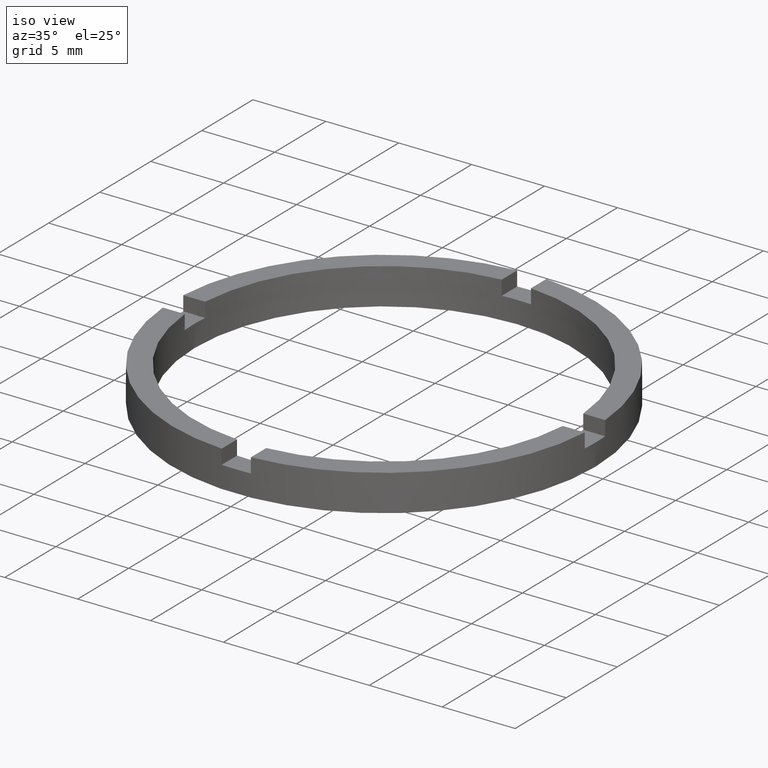
[diagram: clean part render]
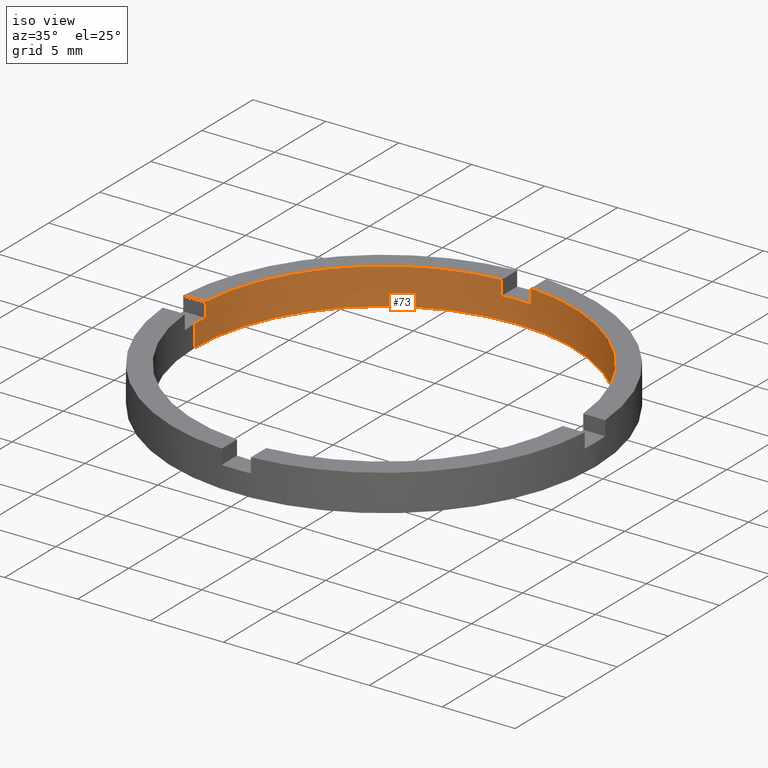
[diagram: same view with one face highlighted and labeled with its STEP entity id]
A machine part, iso view. The second image highlights one B-rep face of the part: STEP entity #73.
In plain terms, the highlighted cylindrical surface (partial cylindrical patch) has radius 13 mm, axis along (-0, -0, -1).
Its self-contained STEP definition (entity closure, byte-faithful):
#11 = DIRECTION ( 'NONE',  ( 0.000000000000000000, 0.000000000000000000, 1.000000000000000000 ) ) ;
#28 = AXIS2_PLACEMENT_3D ( 'NONE', #314, #750, #609 ) ;
#40 = EDGE_CURVE ( 'NONE', #721, #256, #407, .T. ) ;
#61 = AXIS2_PLACEMENT_3D ( 'NONE', #763, #745, #86 ) ;
#62 = EDGE_CURVE ( 'NONE', #270, #230, #105, .T. ) ;
#68 = CARTESIAN_POINT ( 'NONE',  ( 0.000000000000000000, 0.000000000000000000, 2.500000000000000000 ) ) ;
#71 = CARTESIAN_POINT ( 'NONE',  ( 0.000000000000000000, 0.000000000000000000, 2.500000000000000000 ) ) ;
#72 = DIRECTION ( 'NONE',  ( -0.000000000000000000, -0.000000000000000000, -1.000000000000000000 ) ) ;
#73 = ADVANCED_FACE ( 'NONE', ( #649 ), #388, .F. ) ;
#81 = CARTESIAN_POINT ( 'NONE',  ( -12.96148139681572253, 0.9999999999999776845, 1.500000000000000000 ) ) ;
#84 = CARTESIAN_POINT ( 'NONE',  ( -1.000000000000024869, 12.96148139681571898, 1.500000000000000000 ) ) ;
#85 = CARTESIAN_POINT ( 'NONE',  ( 0.000000000000000000, 0.000000000000000000, 1.500000000000000000 ) ) ;
#86 = DIRECTION ( 'NONE',  ( 1.000000000000000000, 0.000000000000000000, 0.000000000000000000 ) ) ;
#91 = EDGE_CURVE ( 'NONE', #223, #465, #395, .T. ) ;
#96 = CARTESIAN_POINT ( 'NONE',  ( 0.9999999999999751310, 12.96148139681572431, 2.500000000000000000 ) ) ;
#105 = CIRCLE ( 'NONE', #169, 13.00000000000000178 ) ;
#112 = CARTESIAN_POINT ( 'NONE',  ( 0.9999999999999751310, 12.96148139681572431, 1.500000000000000000 ) ) ;
#130 = EDGE_CURVE ( 'NONE', #721, #731, #654, .T. ) ;
#133 = DIRECTION ( 'NONE',  ( 0.000000000000000000, 0.000000000000000000, 1.000000000000000000 ) ) ;
#139 = CARTESIAN_POINT ( 'NONE',  ( 12.96148139681573497, 0.9999999999998406830, 2.500000000000000000 ) ) ;
#147 = VECTOR ( 'NONE', #345, 1000.000000000000000 ) ;
#162 = ORIENTED_EDGE ( 'NONE', *, *, #648, .F. ) ;
#169 = AXIS2_PLACEMENT_3D ( 'NONE', #71, #11, #322 ) ;
#171 = VERTEX_POINT ( 'NONE', #81 ) ;
#188 = ORIENTED_EDGE ( 'NONE', *, *, #130, .F. ) ;
#189 = DIRECTION ( 'NONE',  ( -1.000000000000000000, 0.000000000000000000, 0.000000000000000000 ) ) ;
#191 = AXIS2_PLACEMENT_3D ( 'NONE', #507, #133, #381 ) ;
#214 = DIRECTION ( 'NONE',  ( -0.000000000000000000, -0.000000000000000000, -1.000000000000000000 ) ) ;
#223 = VERTEX_POINT ( 'NONE', #633 ) ;
#230 = VERTEX_POINT ( 'NONE', #485 ) ;
#246 = CARTESIAN_POINT ( 'NONE',  ( -12.96148139681572253, 0.9999999999999776845, 2.500000000000000000 ) ) ;
#248 = ORIENTED_EDGE ( 'NONE', *, *, #738, .T. ) ;
#249 = CARTESIAN_POINT ( 'NONE',  ( 0.000000000000000000, 0.000000000000000000, 1.500000000000000000 ) ) ;
#252 = VERTEX_POINT ( 'NONE', #112 ) ;
#256 = VERTEX_POINT ( 'NONE', #246 ) ;
#258 = EDGE_CURVE ( 'NONE', #171, #256, #610, .T. ) ;
#261 = VERTEX_POINT ( 'NONE', #540 ) ;
#269 = AXIS2_PLACEMENT_3D ( 'NONE', #249, #310, #349 ) ;
#270 = VERTEX_POINT ( 'NONE', #139 ) ;
#271 = EDGE_CURVE ( 'NONE', #270, #261, #642, .T. ) ;
#276 = DIRECTION ( 'NONE',  ( -0.000000000000000000, -0.000000000000000000, -1.000000000000000000 ) ) ;
#303 = LINE ( 'NONE', #96, #558 ) ;
#310 = DIRECTION ( 'NONE',  ( 0.000000000000000000, 0.000000000000000000, 1.000000000000000000 ) ) ;
#314 = CARTESIAN_POINT ( 'NONE',  ( 0.000000000000000000, 0.000000000000000000, 2.500000000000000000 ) ) ;
#322 = DIRECTION ( 'NONE',  ( 1.000000000000000000, 0.000000000000000000, 0.000000000000000000 ) ) ;
#333 = EDGE_CURVE ( 'NONE', #665, #261, #443, .T. ) ;
#341 = EDGE_CURVE ( 'NONE', #416, #465, #435, .T. ) ;
#345 = DIRECTION ( 'NONE',  ( 0.000000000000000000, 0.000000000000000000, 1.000000000000000000 ) ) ;
#347 = CARTESIAN_POINT ( 'NONE',  ( -12.96148139681572253, 0.9999999999999776845, 2.500000000000000000 ) ) ;
#349 = DIRECTION ( 'NONE',  ( 1.000000000000000000, 0.000000000000000000, 0.000000000000000000 ) ) ;
#370 = CARTESIAN_POINT ( 'NONE',  ( -1.000000000000024869, 12.96148139681571898, 2.500000000000000000 ) ) ;
#381 = DIRECTION ( 'NONE',  ( 1.000000000000000000, 0.000000000000000000, 0.000000000000000000 ) ) ;
#388 = CYLINDRICAL_SURFACE ( 'NONE', #683, 13.00000000000000178 ) ;
#395 = CIRCLE ( 'NONE', #191, 13.00000000000000178 ) ;
#397 = VECTOR ( 'NONE', #276, 1000.000000000000000 ) ;
#407 = CIRCLE ( 'NONE', #28, 13.00000000000000178 ) ;
#416 = VERTEX_POINT ( 'NONE', #463 ) ;
#417 = ORIENTED_EDGE ( 'NONE', *, *, #258, .F. ) ;
#419 = CARTESIAN_POINT ( 'NONE',  ( -13.00000000000000178, 0.000000000000000000, 2.500000000000000000 ) ) ;
#435 = LINE ( 'NONE', #419, #441 ) ;
#440 = ORIENTED_EDGE ( 'NONE', *, *, #333, .T. ) ;
#441 = VECTOR ( 'NONE', #214, 1000.000000000000000 ) ;
#443 = CIRCLE ( 'NONE', #269, 13.00000000000000178 ) ;
#449 = ORIENTED_EDGE ( 'NONE', *, *, #91, .F. ) ;
#460 = EDGE_LOOP ( 'NONE', ( #489, #440, #662, #718, #162, #248, #188, #499, #417, #656, #769, #449 ) ) ;
#463 = CARTESIAN_POINT ( 'NONE',  ( -13.00000000000000178, 0.000000000000000000, 1.500000000000000000 ) ) ;
#465 = VERTEX_POINT ( 'NONE', #561 ) ;
#468 = CARTESIAN_POINT ( 'NONE',  ( 13.00000000000000178, 1.592040838891559293E-15, 1.500000000000000000 ) ) ;
#485 = CARTESIAN_POINT ( 'NONE',  ( 0.9999999999999751310, 12.96148139681572431, 2.500000000000000000 ) ) ;
#489 = ORIENTED_EDGE ( 'NONE', *, *, #586, .F. ) ;
#499 = ORIENTED_EDGE ( 'NONE', *, *, #40, .T. ) ;
#502 = CARTESIAN_POINT ( 'NONE',  ( -1.000000000000024869, 12.96148139681571898, 2.500000000000000000 ) ) ;
#505 = AXIS2_PLACEMENT_3D ( 'NONE', #85, #567, #602 ) ;
#507 = CARTESIAN_POINT ( 'NONE',  ( 0.000000000000000000, 0.000000000000000000, 0.000000000000000000 ) ) ;
#518 = EDGE_CURVE ( 'NONE', #171, #416, #563, .T. ) ;
#526 = DIRECTION ( 'NONE',  ( 0.000000000000000000, 0.000000000000000000, 1.000000000000000000 ) ) ;
#532 = LINE ( 'NONE', #637, #536 ) ;
#535 = CIRCLE ( 'NONE', #61, 13.00000000000000178 ) ;
#536 = VECTOR ( 'NONE', #705, 1000.000000000000000 ) ;
#540 = CARTESIAN_POINT ( 'NONE',  ( 12.96148139681573497, 0.9999999999998406830, 1.500000000000000000 ) ) ;
#558 = VECTOR ( 'NONE', #526, 1000.000000000000000 ) ;
#561 = CARTESIAN_POINT ( 'NONE',  ( -13.00000000000000178, 0.000000000000000000, 0.000000000000000000 ) ) ;
#563 = CIRCLE ( 'NONE', #505, 13.00000000000000178 ) ;
#567 = DIRECTION ( 'NONE',  ( 0.000000000000000000, 0.000000000000000000, 1.000000000000000000 ) ) ;
#586 = EDGE_CURVE ( 'NONE', #665, #223, #532, .T. ) ;
#592 = DIRECTION ( 'NONE',  ( -0.000000000000000000, -0.000000000000000000, -1.000000000000000000 ) ) ;
#593 = CARTESIAN_POINT ( 'NONE',  ( 12.96148139681573497, 0.9999999999998406830, 2.500000000000000000 ) ) ;
#602 = DIRECTION ( 'NONE',  ( 1.000000000000000000, 0.000000000000000000, 0.000000000000000000 ) ) ;
#609 = DIRECTION ( 'NONE',  ( 1.000000000000000000, 0.000000000000000000, 0.000000000000000000 ) ) ;
#610 = LINE ( 'NONE', #347, #147 ) ;
#633 = CARTESIAN_POINT ( 'NONE',  ( 13.00000000000000178, 1.592040838891559293E-15, 0.000000000000000000 ) ) ;
#637 = CARTESIAN_POINT ( 'NONE',  ( 13.00000000000000178, 1.592040838891559293E-15, 2.500000000000000000 ) ) ;
#642 = LINE ( 'NONE', #593, #644 ) ;
#644 = VECTOR ( 'NONE', #72, 1000.000000000000000 ) ;
#648 = EDGE_CURVE ( 'NONE', #252, #230, #303, .T. ) ;
#649 = FACE_OUTER_BOUND ( 'NONE', #460, .T. ) ;
#654 = LINE ( 'NONE', #502, #397 ) ;
#656 = ORIENTED_EDGE ( 'NONE', *, *, #518, .T. ) ;
#662 = ORIENTED_EDGE ( 'NONE', *, *, #271, .F. ) ;
#665 = VERTEX_POINT ( 'NONE', #468 ) ;
#683 = AXIS2_PLACEMENT_3D ( 'NONE', #68, #592, #189 ) ;
#705 = DIRECTION ( 'NONE',  ( -0.000000000000000000, -0.000000000000000000, -1.000000000000000000 ) ) ;
#718 = ORIENTED_EDGE ( 'NONE', *, *, #62, .T. ) ;
#721 = VERTEX_POINT ( 'NONE', #370 ) ;
#731 = VERTEX_POINT ( 'NONE', #84 ) ;
#738 = EDGE_CURVE ( 'NONE', #252, #731, #535, .T. ) ;
#745 = DIRECTION ( 'NONE',  ( 0.000000000000000000, -0.000000000000000000, 1.000000000000000000 ) ) ;
#750 = DIRECTION ( 'NONE',  ( 0.000000000000000000, 0.000000000000000000, 1.000000000000000000 ) ) ;
#763 = CARTESIAN_POINT ( 'NONE',  ( 0.000000000000000000, 0.000000000000000000, 1.500000000000000000 ) ) ;
#769 = ORIENTED_EDGE ( 'NONE', *, *, #341, .T. ) ;